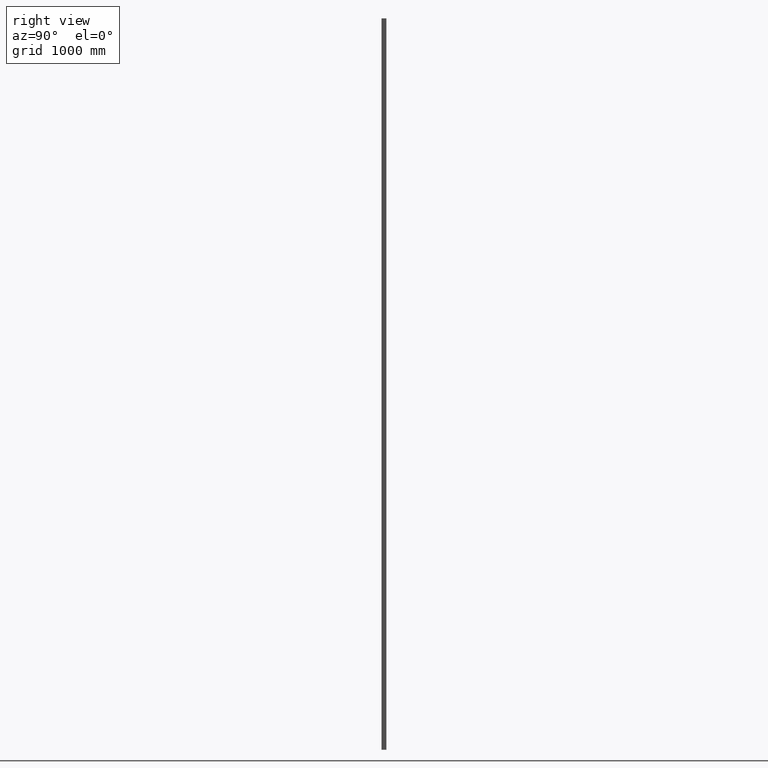
[diagram: clean part render]
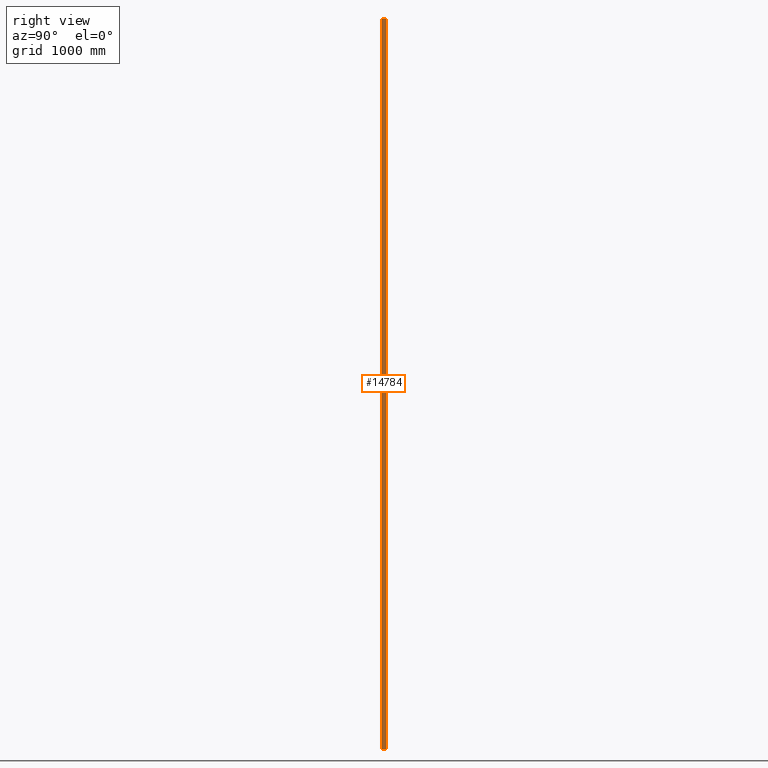
[diagram: same view with one face highlighted and labeled with its STEP entity id]
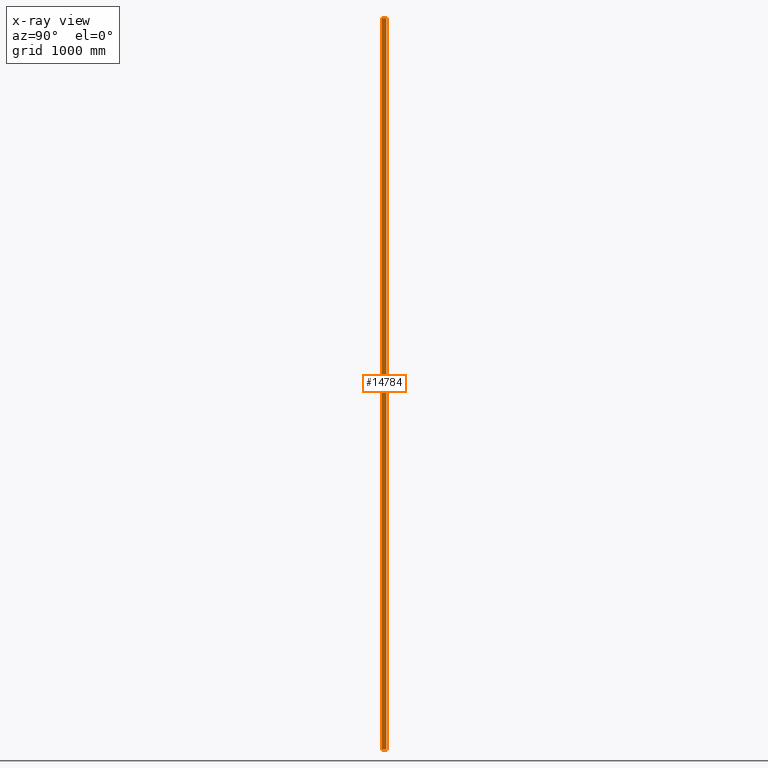
[diagram: x-ray of the same camera — body ghosted, the highlighted face saturated]
A machine part, right view. The second image highlights one B-rep face of the part: STEP entity #14784.
The next image is the same camera in x-ray: the body ghosted, the highlighted face saturated — about 0% of this face is hidden behind the body in this view.
In plain terms, the highlighted planar face has unit normal (-1, -0, 0).
Its self-contained STEP definition (entity closure, byte-faithful):
#981 = DIRECTION ( 'NONE',  ( 9.637352644315595243E-17, -1.000000000000000000, 0.000000000000000000 ) ) ;
#1451 = AXIS2_PLACEMENT_3D ( 'NONE', #7475, #8782, #981 ) ;
#2006 = VECTOR ( 'NONE', #9909, 1000.000000000000000 ) ;
#2065 = EDGE_CURVE ( 'NONE', #10864, #14646, #7962, .T. ) ;
#3583 = LINE ( 'NONE', #7169, #7679 ) ;
#4014 = EDGE_CURVE ( 'NONE', #16340, #5167, #8120, .T. ) ;
#4790 = CARTESIAN_POINT ( 'NONE',  ( 30.00000000000000000, -18.00000000000000355, 3000.000000000000000 ) ) ;
#5053 = CARTESIAN_POINT ( 'NONE',  ( 29.99999999999999645, 17.99999999999999645, -3000.000000000000000 ) ) ;
#5167 = VERTEX_POINT ( 'NONE', #5675 ) ;
#5555 = DIRECTION ( 'NONE',  ( -0.000000000000000000, -0.000000000000000000, -1.000000000000000000 ) ) ;
#5675 = CARTESIAN_POINT ( 'NONE',  ( 30.00000000000000000, -18.00000000000000355, -3000.000000000000000 ) ) ;
#6855 = LINE ( 'NONE', #14163, #14815 ) ;
#7169 = CARTESIAN_POINT ( 'NONE',  ( 29.99999999999999645, 17.99999999999999645, -3000.000000000000000 ) ) ;
#7475 = CARTESIAN_POINT ( 'NONE',  ( 29.99999999999999645, 17.99999999999999645, 3000.000000000000000 ) ) ;
#7679 = VECTOR ( 'NONE', #16304, 1000.000000000000000 ) ;
#7962 = LINE ( 'NONE', #13378, #12440 ) ;
#8120 = LINE ( 'NONE', #4790, #2006 ) ;
#8654 = CARTESIAN_POINT ( 'NONE',  ( 30.00000000000000000, -18.00000000000000355, 3000.000000000000000 ) ) ;
#8782 = DIRECTION ( 'NONE',  ( -1.000000000000000000, -9.637352644315595243E-17, 0.000000000000000000 ) ) ;
#8810 = CARTESIAN_POINT ( 'NONE',  ( 29.99999999999999645, 17.99999999999999645, 3000.000000000000000 ) ) ;
#9012 = DIRECTION ( 'NONE',  ( -9.637352644315595243E-17, 1.000000000000000000, -0.000000000000000000 ) ) ;
#9909 = DIRECTION ( 'NONE',  ( -0.000000000000000000, -0.000000000000000000, -1.000000000000000000 ) ) ;
#9997 = ORIENTED_EDGE ( 'NONE', *, *, #2065, .F. ) ;
#10623 = ORIENTED_EDGE ( 'NONE', *, *, #11952, .T. ) ;
#10675 = ORIENTED_EDGE ( 'NONE', *, *, #11750, .F. ) ;
#10864 = VERTEX_POINT ( 'NONE', #8810 ) ;
#11750 = EDGE_CURVE ( 'NONE', #16340, #10864, #6855, .T. ) ;
#11952 = EDGE_CURVE ( 'NONE', #5167, #14646, #3583, .T. ) ;
#12440 = VECTOR ( 'NONE', #5555, 1000.000000000000000 ) ;
#12733 = FACE_OUTER_BOUND ( 'NONE', #15749, .T. ) ;
#13378 = CARTESIAN_POINT ( 'NONE',  ( 29.99999999999999645, 17.99999999999999645, 3000.000000000000000 ) ) ;
#13727 = ORIENTED_EDGE ( 'NONE', *, *, #4014, .T. ) ;
#14163 = CARTESIAN_POINT ( 'NONE',  ( 29.99999999999999645, 17.99999999999999645, 3000.000000000000000 ) ) ;
#14646 = VERTEX_POINT ( 'NONE', #5053 ) ;
#14784 = ADVANCED_FACE ( 'NONE', ( #12733 ), #15318, .F. ) ;
#14815 = VECTOR ( 'NONE', #9012, 1000.000000000000000 ) ;
#15318 = PLANE ( 'NONE',  #1451 ) ;
#15749 = EDGE_LOOP ( 'NONE', ( #10623, #9997, #10675, #13727 ) ) ;
#16304 = DIRECTION ( 'NONE',  ( -9.637352644315595243E-17, 1.000000000000000000, -0.000000000000000000 ) ) ;
#16340 = VERTEX_POINT ( 'NONE', #8654 ) ;